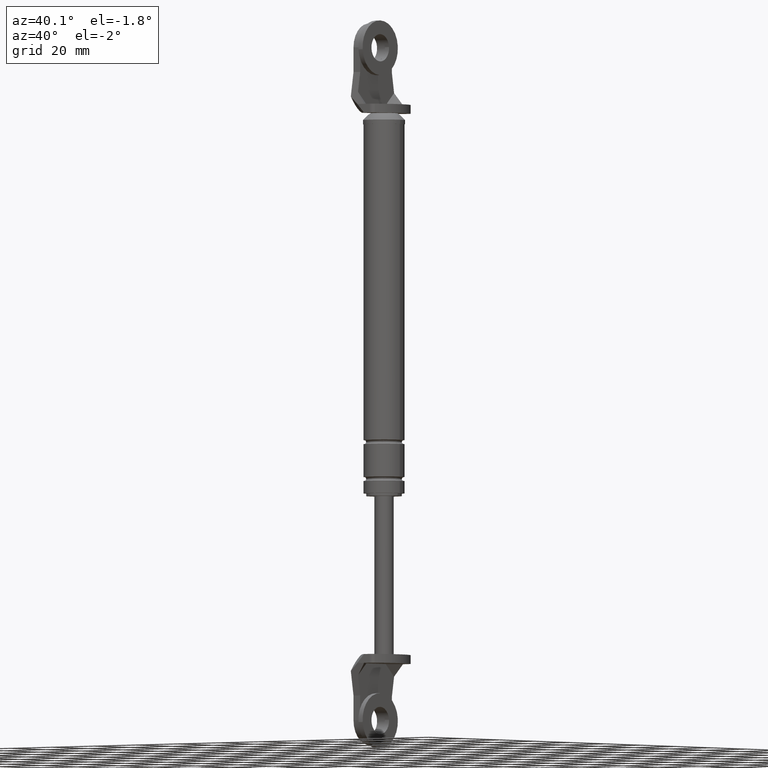
[diagram: clean part render]
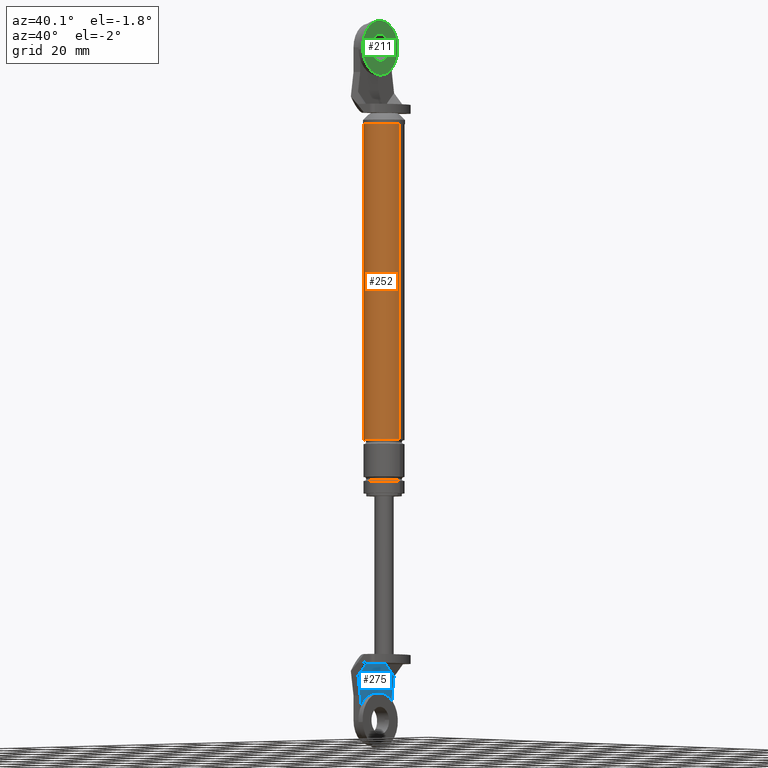
[diagram: same view with three faces highlighted in distinct colors, each labeled with its STEP entity id]
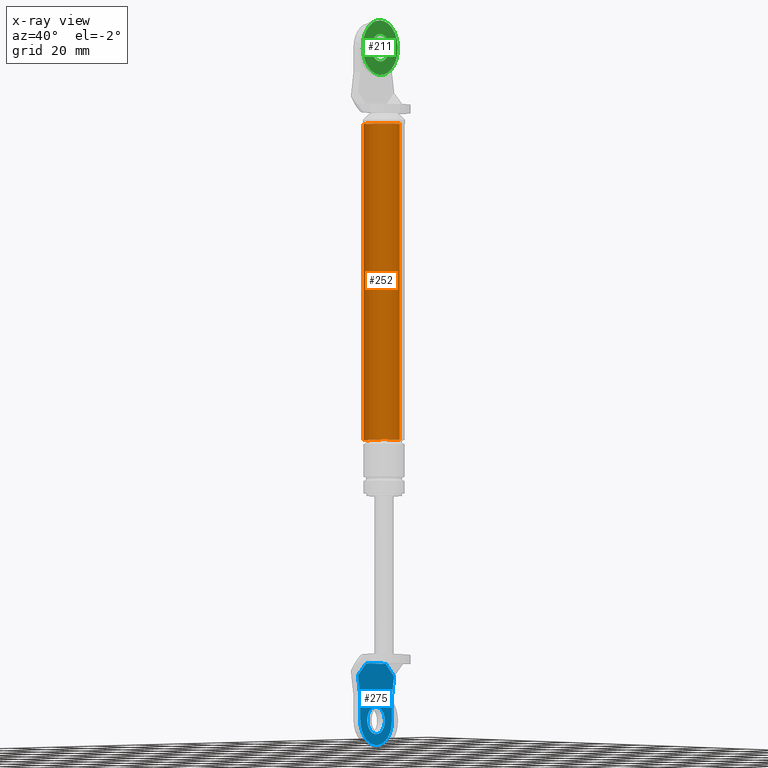
[diagram: x-ray of the same camera — body ghosted, the three highlighted faces saturated]
A machine part, auxiliary view with three faces highlighted in distinct colors.
The next image is the same camera in x-ray (body ghosted, the three faces saturated) — at least one of them is partly hidden behind the body in this view.
Their STEP definitions:

[orange] entity #252 — the highlighted cylindrical surface (edge-blend (fillet) strip) has radius 7.5 mm, axis along (0, 0, -1).
#252=ADVANCED_FACE('',(#777),#776,.T.);
#776=CYLINDRICAL_SURFACE('',#1395,7.50000000000E+000);
#777=FACE_OUTER_BOUND('',#1396,.T.);
#1392=CARTESIAN_POINT('',(7.00000000000E+000,0.00000000000E+000,1.02800000000E+003));
#1393=DIRECTION('',(-0.00000000000E+000,-0.00000000000E+000,1.00000000000E+000));
#1394=DIRECTION('',(1.00000000000E+000,-0.00000000000E+000,-0.00000000000E+000));
#1395=AXIS2_PLACEMENT_3D('',#1392,#1393,#1394);
#1396=EDGE_LOOP('',(#1836,#1837,#1838,#1839));
#1836=ORIENTED_EDGE('',*,*,#2100,.F.);
#1837=ORIENTED_EDGE('',*,*,#2124,.F.);
#1838=ORIENTED_EDGE('',*,*,#2030,.F.);
#1839=ORIENTED_EDGE('',*,*,#2125,.T.);
#2030=EDGE_CURVE('',#2426,#2427,#2428,.T.);
#2100=EDGE_CURVE('',#2898,#2899,#2900,.T.);
#2124=EDGE_CURVE('',#2427,#2898,#3056,.T.);
#2125=EDGE_CURVE('',#2426,#2899,#3062,.T.);
#2426=VERTEX_POINT('',#3676);
#2427=VERTEX_POINT('',#3677);
#2428=CIRCLE('',#3681,7.50000000000E+000);
#2898=VERTEX_POINT('',#3978);
#2899=VERTEX_POINT('',#3979);
#2900=CIRCLE('',#3983,7.50000000000E+000);
#3056=(BOUNDED_CURVE() B_SPLINE_CURVE(1,(#4076,#4077),.UNSPECIFIED.,.F.,.F.) B_SPLINE_CURVE_WITH_KNOTS((2,2),(7.38007379691E-002,9.26199262206E-001),.UNSPECIFIED.) CURVE() GEOMETRIC_REPRESENTATION_ITEM() RATIONAL_B_SPLINE_CURVE((1.00000000000E+000,1.00000000000E+000)) REPRESENTATION_ITEM('') );
#3062=(BOUNDED_CURVE() B_SPLINE_CURVE(1,(#4078,#4079),.UNSPECIFIED.,.F.,.F.) B_SPLINE_CURVE_WITH_KNOTS((2,2),(7.38007380074E-002,9.26199261993E-001),.UNSPECIFIED.) CURVE() GEOMETRIC_REPRESENTATION_ITEM() RATIONAL_B_SPLINE_CURVE((7.50000000000E-001,7.50000000000E-001)) REPRESENTATION_ITEM('') );
#3676=CARTESIAN_POINT('',(-5.00000000000E-001,0.00000000000E+000,2.80000000000E+001));
#3677=CARTESIAN_POINT('',(1.45000000000E+001,5.92118946467E-016,2.80000000000E+001));
#3678=CARTESIAN_POINT('',(7.00000000000E+000,0.00000000000E+000,2.80000000000E+001));
#3679=DIRECTION('',(-0.00000000000E+000,0.00000000000E+000,-1.00000000000E+000));
#3680=DIRECTION('',(-1.00000000000E+000,-1.22460635382E-016,0.00000000000E+000));
#3681=AXIS2_PLACEMENT_3D('',#3678,#3679,#3680);
#3978=CARTESIAN_POINT('',(1.45000000000E+001,0.00000000000E+000,1.43500000000E+002));
#3979=CARTESIAN_POINT('',(-5.00000000000E-001,5.92118946467E-016,1.43500000000E+002));
#3980=CARTESIAN_POINT('',(7.00000000000E+000,0.00000000000E+000,1.43500000000E+002));
#3981=DIRECTION('',(0.00000000000E+000,0.00000000000E+000,1.00000000000E+000));
#3982=DIRECTION('',(1.00000000000E+000,-1.22460635382E-016,0.00000000000E+000));
#3983=AXIS2_PLACEMENT_3D('',#3980,#3981,#3982);
#4076=CARTESIAN_POINT('',(1.45000000000E+001,0.00000000000E+000,2.79999999948E+001));
#4077=CARTESIAN_POINT('',(1.45000000000E+001,0.00000000000E+000,1.43500000029E+002));
#4078=CARTESIAN_POINT('',(-5.00000000000E-001,-2.96059473233E-016,2.80000000000E+001));
#4079=CARTESIAN_POINT('',(-5.00000000000E-001,-2.96059473233E-016,1.43500000000E+002));

[blue] entity #275 — the highlighted planar face has unit normal (1, 0, 0).
#275=ADVANCED_FACE('',(#1008,#1009),#1007,.T.);
#1007=PLANE('',#1553);
#1008=FACE_OUTER_BOUND('',#1554,.T.);
#1009=FACE_BOUND('',#1555,.T.);
#1550=CARTESIAN_POINT('',(3.20000000000E+000,1.22847457627E+001,2.22220000000E+002));
#1551=DIRECTION('',(1.00000000000E+000,0.00000000000E+000,-0.00000000000E+000));
#1552=DIRECTION('',(0.00000000000E+000,0.00000000000E+000,1.00000000000E+000));
#1553=AXIS2_PLACEMENT_3D('',#1550,#1551,#1552);
#1554=EDGE_LOOP('',(#1954,#1955,#1956,#1957,#1958,#1959,#1960,#1961));
#1555=EDGE_LOOP('',(#1962,#1963));
#1954=ORIENTED_EDGE('',*,*,#2188,.F.);
#1955=ORIENTED_EDGE('',*,*,#2148,.F.);
#1956=ORIENTED_EDGE('',*,*,#2189,.F.);
#1957=ORIENTED_EDGE('',*,*,#2152,.T.);
#1958=ORIENTED_EDGE('',*,*,#2186,.T.);
#1959=ORIENTED_EDGE('',*,*,#2184,.F.);
#1960=ORIENTED_EDGE('',*,*,#2182,.T.);
#1961=ORIENTED_EDGE('',*,*,#2180,.T.);
#1962=ORIENTED_EDGE('',*,*,#2190,.T.);
#1963=ORIENTED_EDGE('',*,*,#2191,.T.);
#2148=EDGE_CURVE('',#3210,#3217,#3218,.T.);
#2152=EDGE_CURVE('',#3244,#3237,#3245,.T.);
#2180=EDGE_CURVE('',#3429,#3422,#3430,.T.);
#2182=EDGE_CURVE('',#3442,#3429,#3443,.T.);
#2184=EDGE_CURVE('',#3442,#3455,#3456,.T.);
#2186=EDGE_CURVE('',#3237,#3455,#3468,.T.);
#2188=EDGE_CURVE('',#3217,#3422,#3480,.T.);
#2189=EDGE_CURVE('',#3244,#3210,#3486,.T.);
#2190=EDGE_CURVE('',#3492,#3493,#3494,.T.);
#2191=EDGE_CURVE('',#3493,#3492,#3500,.T.);
#3210=VERTEX_POINT('',#4163);
#3217=VERTEX_POINT('',#4166);
#3218=LINE('',#4167,#4168);
#3237=VERTEX_POINT('',#4176);
#3244=VERTEX_POINT('',#4180);
#3245=LINE('',#4181,#4182);
#3422=VERTEX_POINT('',#4299);
#3429=VERTEX_POINT('',#4302);
#3430=LINE('',#4303,#4304);
#3442=VERTEX_POINT('',#4309);
#3443=LINE('',#4310,#4311);
#3455=VERTEX_POINT('',#4316);
#3456=CIRCLE('',#4320,9.00000000000E+000);
#3468=LINE('',#4324,#4325);
#3480=LINE('',#4330,#4331);
#3486=LINE('',#4333,#4334);
#3492=VERTEX_POINT('',#4336);
#3493=VERTEX_POINT('',#4337);
#3494=CIRCLE('',#4341,5.00000000000E+000);
#3500=CIRCLE('',#4345,5.00000000000E+000);
#4163=CARTESIAN_POINT('',(3.20000000000E+000,5.50000000000E+000,2.25200000000E+002));
#4166=CARTESIAN_POINT('',(3.20000000000E+000,-5.50000000000E+000,2.25200000000E+002));
#4167=CARTESIAN_POINT('',(3.20000000000E+000,5.50000000000E+000,2.25200000000E+002));
#4168=VECTOR('',#4169,1.10000000000E+001);
#4169=DIRECTION('',(0.00000000000E+000,-1.00000000000E+000,0.00000000000E+000));
#4176=CARTESIAN_POINT('',(3.20000000000E+000,9.00000000000E+000,2.37000000000E+002));
#4180=CARTESIAN_POINT('',(3.20000000000E+000,1.02372881356E+001,2.29700000000E+002));
#4181=CARTESIAN_POINT('',(3.20000000000E+000,1.02372881356E+001,2.29700000000E+002));
#4182=VECTOR('',#4183,7.40411250120E+000);
#4183=DIRECTION('',(0.00000000000E+000,-1.67108230108E-001,9.85938557634E-001));
#4299=CARTESIAN_POINT('',(3.20000000000E+000,-1.02372881356E+001,2.29700000000E+002));
#4302=CARTESIAN_POINT('',(3.20000000000E+000,-9.00000000000E+000,2.37000000000E+002));
#4303=CARTESIAN_POINT('',(3.20000000000E+000,-9.00000000000E+000,2.37000000000E+002));
#4304=VECTOR('',#4305,7.40411250120E+000);
#4305=DIRECTION('',(0.00000000000E+000,-1.67108230108E-001,-9.85938557634E-001));
#4309=CARTESIAN_POINT('',(3.20000000000E+000,-9.00000000000E+000,2.46000000000E+002));
#4310=CARTESIAN_POINT('',(3.20000000000E+000,-9.00000000000E+000,2.46000000000E+002));
#4311=VECTOR('',#4312,9.00000000000E+000);
#4312=DIRECTION('',(0.00000000000E+000,0.00000000000E+000,-1.00000000000E+000));
#4316=CARTESIAN_POINT('',(3.20000000000E+000,9.00000000000E+000,2.46000000000E+002));
#4317=CARTESIAN_POINT('',(3.20000000000E+000,-2.47972407408E-014,2.46000000000E+002));
#4318=DIRECTION('',(-1.00000000000E+000,-0.00000000000E+000,0.00000000000E+000));
#4319=DIRECTION('',(-0.00000000000E+000,-0.00000000000E+000,-1.00000000000E+000));
#4320=AXIS2_PLACEMENT_3D('',#4317,#4318,#4319);
#4324=CARTESIAN_POINT('',(3.20000000000E+000,9.00000000000E+000,2.37000000000E+002));
#4325=VECTOR('',#4326,9.00000000000E+000);
#4326=DIRECTION('',(0.00000000000E+000,0.00000000000E+000,1.00000000000E+000));
#4330=CARTESIAN_POINT('',(3.20000000000E+000,-5.50000000000E+000,2.25200000000E+002));
#4331=VECTOR('',#4332,6.53390380092E+000);
#4332=DIRECTION('',(0.00000000000E+000,-7.25031815578E-001,6.88715374011E-001));
#4333=CARTESIAN_POINT('',(3.20000000000E+000,1.02372881356E+001,2.29700000000E+002));
#4334=VECTOR('',#4335,6.53390380092E+000);
#4335=DIRECTION('',(0.00000000000E+000,-7.25031815578E-001,-6.88715374011E-001));
#4336=CARTESIAN_POINT('',(3.20000000000E+000,-2.47972407408E-014,2.51000000000E+002));
#4337=CARTESIAN_POINT('',(3.20000000000E+000,-2.54611146981E-014,2.41000000000E+002));
#4338=CARTESIAN_POINT('',(3.20000000000E+000,-2.47972407408E-014,2.46000000000E+002));
#4339=DIRECTION('',(-1.00000000000E+000,0.00000000000E+000,0.00000000000E+000));
#4340=DIRECTION('',(0.00000000000E+000,1.22460635382E-016,1.00000000000E+000));
#4341=AXIS2_PLACEMENT_3D('',#4338,#4339,#4340);
#4342=CARTESIAN_POINT('',(3.20000000000E+000,-2.47972407408E-014,2.46000000000E+002));
#4343=DIRECTION('',(-1.00000000000E+000,0.00000000000E+000,0.00000000000E+000));
#4344=DIRECTION('',(0.00000000000E+000,1.22460635382E-016,1.00000000000E+000));
#4345=AXIS2_PLACEMENT_3D('',#4342,#4343,#4344);

[green] entity #211 — the highlighted planar face has unit normal (1, 0, 0).
#211=ADVANCED_FACE('',(#358,#359),#357,.T.);
#357=PLANE('',#1139);
#358=FACE_OUTER_BOUND('',#1140,.T.);
#359=FACE_BOUND('',#1141,.T.);
#1136=CARTESIAN_POINT('',(-6.70000310000E+001,2.07846096925E+001,2.66000000003E+002));
#1137=DIRECTION('',(1.00000000000E+000,0.00000000000E+000,0.00000000000E+000));
#1138=DIRECTION('',(0.00000000000E+000,-1.00000000000E+000,0.00000000000E+000));
#1139=AXIS2_PLACEMENT_3D('',#1136,#1137,#1138);
#1140=EDGE_LOOP('',(#1634,#1635,#1636));
#1141=EDGE_LOOP('',(#1637,#1638,#1639));
#1634=ORIENTED_EDGE('',*,*,#2018,.F.);
#1635=ORIENTED_EDGE('',*,*,#2019,.F.);
#1636=ORIENTED_EDGE('',*,*,#2020,.F.);
#1637=ORIENTED_EDGE('',*,*,#2021,.T.);
#1638=ORIENTED_EDGE('',*,*,#2022,.T.);
#1639=ORIENTED_EDGE('',*,*,#2023,.T.);
#2018=EDGE_CURVE('',#2346,#2347,#2348,.T.);
#2019=EDGE_CURVE('',#2354,#2346,#2355,.T.);
#2020=EDGE_CURVE('',#2347,#2354,#2361,.T.);
#2021=EDGE_CURVE('',#2367,#2368,#2369,.T.);
#2022=EDGE_CURVE('',#2368,#2375,#2376,.T.);
#2023=EDGE_CURVE('',#2375,#2367,#2382,.T.);
#2346=VERTEX_POINT('',#3628);
#2347=VERTEX_POINT('',#3629);
#2348=CIRCLE('',#3633,1.00000000008E+001);
#2354=VERTEX_POINT('',#3634);
#2355=CIRCLE('',#3638,1.00000000008E+001);
#2361=CIRCLE('',#3642,1.00000000008E+001);
#2367=VERTEX_POINT('',#3643);
#2368=VERTEX_POINT('',#3644);
#2369=CIRCLE('',#3648,5.00000000174E+000);
#2375=VERTEX_POINT('',#3649);
#2376=CIRCLE('',#3653,5.00000000174E+000);
#2382=CIRCLE('',#3657,5.00000000174E+000);
#3628=CARTESIAN_POINT('',(-6.70000310000E+001,-9.96913532293E+000,2.52214926173E+002));
#3629=CARTESIAN_POINT('',(-6.70000310000E+001,8.49285803892E-014,2.63000000002E+002));
#3630=CARTESIAN_POINT('',(-6.70000310000E+001,7.41160910422E-010,2.53000000001E+002));
#3631=DIRECTION('',(-1.00000000000E+000,1.50728876034E-015,-1.11705783034E-025));
#3632=DIRECTION('',(-2.23406478870E-025,-7.41070316284E-011,1.00000000000E+000));
#3633=AXIS2_PLACEMENT_3D('',#3630,#3631,#3632);
#3634=CARTESIAN_POINT('',(-6.70000310000E+001,9.96917333893E+000,2.53784590957E+002));
#3635=CARTESIAN_POINT('',(-6.70000310000E+001,7.41160910422E-010,2.53000000001E+002));
#3636=DIRECTION('',(-1.00000000000E+000,1.50728876034E-015,-1.11705783034E-025));
#3637=DIRECTION('',(-2.23406478870E-025,-7.41070316284E-011,1.00000000000E+000));
#3638=AXIS2_PLACEMENT_3D('',#3635,#3636,#3637);
#3639=CARTESIAN_POINT('',(-6.70000310000E+001,7.41160910422E-010,2.53000000001E+002));
#3640=DIRECTION('',(-1.00000000000E+000,1.50728876034E-015,-1.11705783034E-025));
#3641=DIRECTION('',(-2.23406478870E-025,-7.41070316284E-011,1.00000000000E+000));
#3642=AXIS2_PLACEMENT_3D('',#3639,#3640,#3641);
#3643=CARTESIAN_POINT('',(-6.70000310000E+001,5.84504371335E-014,2.58000000003E+002));
#3644=CARTESIAN_POINT('',(-6.70000310000E+001,4.98458657258E+000,2.53392296744E+002));
#3645=CARTESIAN_POINT('',(-6.70000310000E+001,1.61135238486E-009,2.53000000002E+002));
#3646=DIRECTION('',(-1.00000000000E+000,0.00000000000E+000,0.00000000000E+000));
#3647=DIRECTION('',(0.00000000000E+000,-3.22258220222E-010,1.00000000000E+000));
#3648=AXIS2_PLACEMENT_3D('',#3645,#3646,#3647);
#3649=CARTESIAN_POINT('',(-6.70000310000E+001,-4.98456766232E+000,2.52607463098E+002));
#3650=CARTESIAN_POINT('',(-6.70000310000E+001,1.61135238486E-009,2.53000000002E+002));
#3651=DIRECTION('',(-1.00000000000E+000,0.00000000000E+000,0.00000000000E+000));
#3652=DIRECTION('',(0.00000000000E+000,-3.22258220222E-010,1.00000000000E+000));
#3653=AXIS2_PLACEMENT_3D('',#3650,#3651,#3652);
#3654=CARTESIAN_POINT('',(-6.70000310000E+001,1.61135238486E-009,2.53000000002E+002));
#3655=DIRECTION('',(-1.00000000000E+000,0.00000000000E+000,0.00000000000E+000));
#3656=DIRECTION('',(0.00000000000E+000,-3.22258220222E-010,1.00000000000E+000));
#3657=AXIS2_PLACEMENT_3D('',#3654,#3655,#3656);